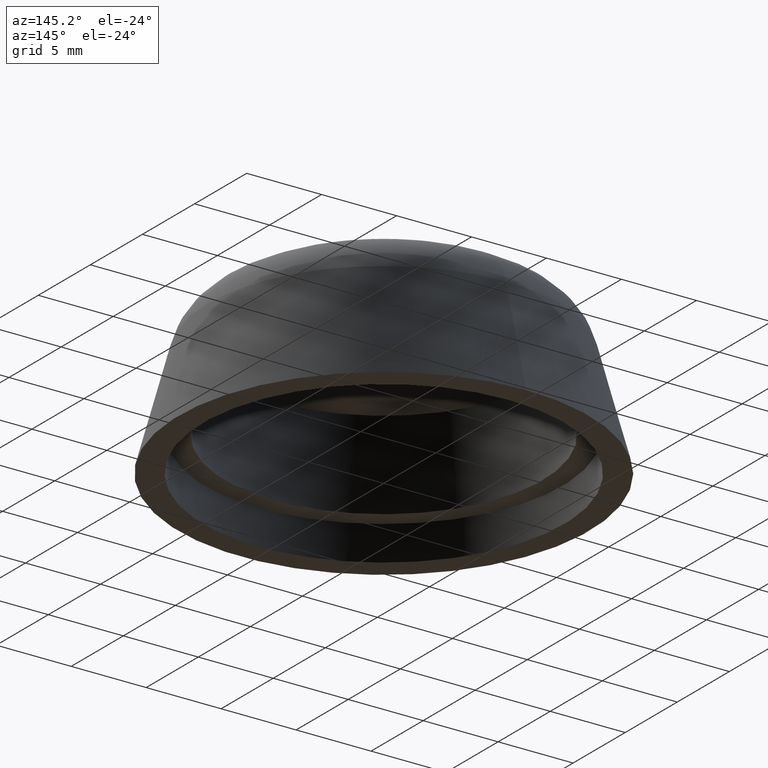
[diagram: clean part render]
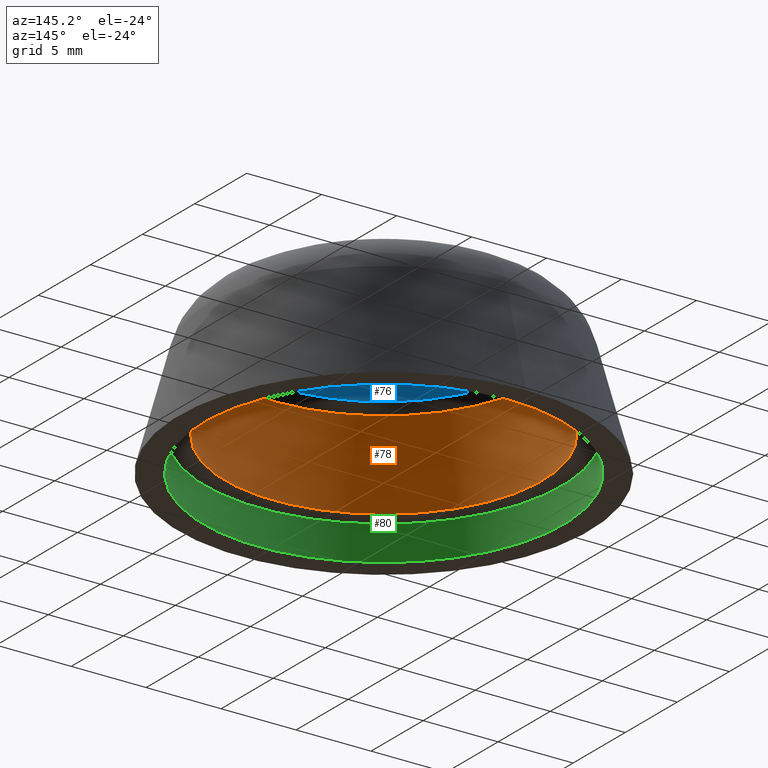
[diagram: same view with three faces highlighted in distinct colors, each labeled with its STEP entity id]
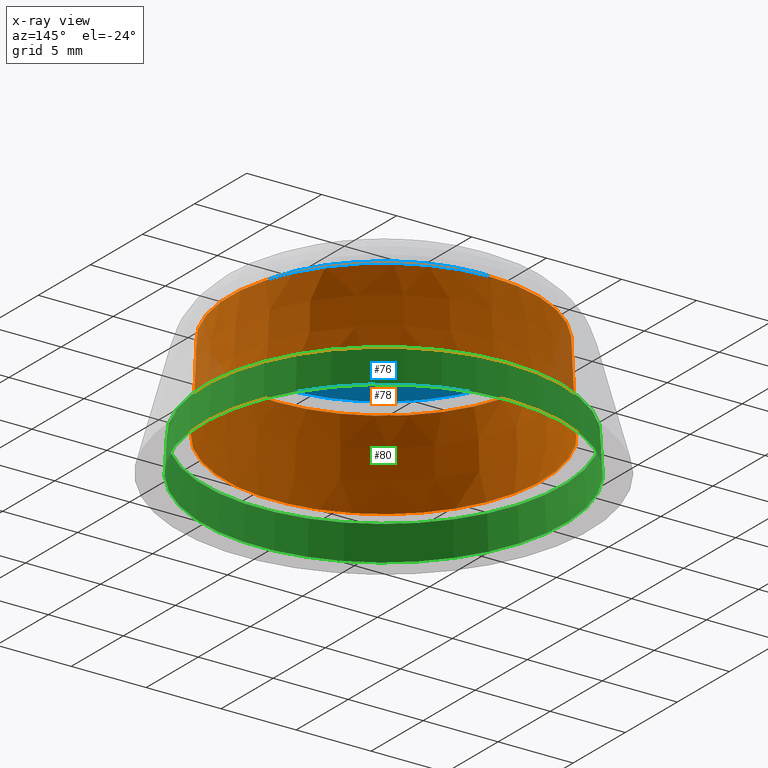
[diagram: x-ray of the same camera — body ghosted, the three highlighted faces saturated]
A machine part, auxiliary view with three faces highlighted in distinct colors.
The next image is the same camera in x-ray (body ghosted, the three faces saturated) — at least one of them is partly hidden behind the body in this view.
Their STEP definitions:

[orange] entity #78 — the highlighted conical surface has half-angle 3 deg.
#78 = ADVANCED_FACE( '', ( #93, #94 ), #95, .F. );
#93 = FACE_OUTER_BOUND( '', #153, .T. );
#94 = FACE_BOUND( '', #154, .T. );
#95 = CONICAL_SURFACE( '', #155, 10.2749613892478, 0.0523598775598312 );
#153 = EDGE_LOOP( '', ( #182 ) );
#154 = EDGE_LOOP( '', ( #183 ) );
#155 = AXIS2_PLACEMENT_3D( '', #184, #185, #186 );
#182 = ORIENTED_EDGE( '', *, *, #216, .T. );
#183 = ORIENTED_EDGE( '', *, *, #215, .F. );
#184 = CARTESIAN_POINT( '', ( 0.000000000000000, -2.91634908894220E-017, 8.02370831984672 ) );
#185 = DIRECTION( '', ( 0.000000000000000, -6.12303176911189E-017, -1.00000000000000 ) );
#186 = DIRECTION( '', ( 0.000000000000000, 1.00000000000000, -6.12303176911189E-017 ) );
#215 = EDGE_CURVE( '', #225, #225, #226, .T. );
#216 = EDGE_CURVE( '', #227, #227, #228, .T. );
#225 = VERTEX_POINT( '', #241 );
#226 = CIRCLE( '', #242, 10.2749613892478 );
#227 = VERTEX_POINT( '', #243 );
#228 = CIRCLE( '', #244, 10.5770245427262 );
#241 = CARTESIAN_POINT( '', ( 0.000000000000000, 10.2749613892478, 8.02370831984672 ) );
#242 = AXIS2_PLACEMENT_3D( '', #259, #260, #261 );
#243 = CARTESIAN_POINT( '', ( 0.000000000000000, 10.5770245427262, 2.26000000000001 ) );
#244 = AXIS2_PLACEMENT_3D( '', #262, #263, #264 );
#259 = CARTESIAN_POINT( '', ( 0.000000000000000, -2.91634908894220E-017, 8.02370831984672 ) );
#260 = DIRECTION( '', ( 0.000000000000000, -6.12303176911189E-017, -1.00000000000000 ) );
#261 = DIRECTION( '', ( 0.000000000000000, 1.00000000000000, -6.12303176911189E-017 ) );
#262 = CARTESIAN_POINT( '', ( 0.000000000000000, -3.82077182392581E-016, 2.26000000000001 ) );
#263 = DIRECTION( '', ( 0.000000000000000, -6.12303176911189E-017, -1.00000000000000 ) );
#264 = DIRECTION( '', ( 0.000000000000000, 1.00000000000000, -6.12303176911189E-017 ) );

[blue] entity #76 — the highlighted planar face has unit normal (0, -0, -1).
#76 = ADVANCED_FACE( '', ( #88 ), #89, .T. );
#88 = FACE_OUTER_BOUND( '', #148, .T. );
#89 = PLANE( '', #149 );
#148 = EDGE_LOOP( '', ( #173 ) );
#149 = AXIS2_PLACEMENT_3D( '', #174, #175, #176 );
#173 = ORIENTED_EDGE( '', *, *, #214, .T. );
#174 = CARTESIAN_POINT( '', ( 0.000000000000000, 1.54888970726467E-031, 8.50000000000000 ) );
#175 = DIRECTION( '', ( 0.000000000000000, -6.12303176911189E-017, -1.00000000000000 ) );
#176 = DIRECTION( '', ( 0.000000000000000, 1.00000000000000, -6.12303176911189E-017 ) );
#214 = EDGE_CURVE( '', #223, #223, #224, .T. );
#223 = VERTEX_POINT( '', #239 );
#224 = CIRCLE( '', #240, 9.44999999999999 );
#239 = CARTESIAN_POINT( '', ( 0.000000000000000, 9.44999999999999, 8.50000000000000 ) );
#240 = AXIS2_PLACEMENT_3D( '', #256, #257, #258 );
#256 = CARTESIAN_POINT( '', ( 0.000000000000000, -3.54294845530480E-032, 8.50000000000000 ) );
#257 = DIRECTION( '', ( 0.000000000000000, -6.12303176911189E-017, -1.00000000000000 ) );
#258 = DIRECTION( '', ( 0.000000000000000, 1.00000000000000, -6.12303176911189E-017 ) );

[green] entity #80 — the highlighted conical surface has half-angle 3 deg.
#80 = ADVANCED_FACE( '', ( #99, #100 ), #101, .F. );
#99 = FACE_OUTER_BOUND( '', #159, .T. );
#100 = FACE_BOUND( '', #160, .T. );
#101 = CONICAL_SURFACE( '', #161, 11.8970245427262, 0.0523598775598362 );
#159 = EDGE_LOOP( '', ( #192 ) );
#160 = EDGE_LOOP( '', ( #193 ) );
#161 = AXIS2_PLACEMENT_3D( '', #194, #195, #196 );
#192 = ORIENTED_EDGE( '', *, *, #218, .T. );
#193 = ORIENTED_EDGE( '', *, *, #217, .F. );
#194 = CARTESIAN_POINT( '', ( 0.000000000000000, -3.82077182392582E-016, 2.26000000000000 ) );
#195 = DIRECTION( '', ( 0.000000000000000, -6.12303176911189E-017, -1.00000000000000 ) );
#196 = DIRECTION( '', ( 0.000000000000000, 1.00000000000000, -6.12303176911189E-017 ) );
#217 = EDGE_CURVE( '', #229, #229, #230, .T. );
#218 = EDGE_CURVE( '', #231, #231, #232, .T. );
#229 = VERTEX_POINT( '', #245 );
#230 = CIRCLE( '', #246, 11.8970245427262 );
#231 = VERTEX_POINT( '', #247 );
#232 = CIRCLE( '', #248, 12.0154661239058 );
#245 = CARTESIAN_POINT( '', ( 0.000000000000000, 11.8970245427262, 2.26000000000000 ) );
#246 = AXIS2_PLACEMENT_3D( '', #265, #266, #267 );
#247 = CARTESIAN_POINT( '', ( 0.000000000000000, 12.0154661239058, -1.28787751398113E-014 ) );
#248 = AXIS2_PLACEMENT_3D( '', #268, #269, #270 );
#265 = CARTESIAN_POINT( '', ( 0.000000000000000, -3.82077182392582E-016, 2.26000000000000 ) );
#266 = DIRECTION( '', ( 0.000000000000000, -6.12303176911189E-017, -1.00000000000000 ) );
#267 = DIRECTION( '', ( 0.000000000000000, 1.00000000000000, -6.12303176911189E-017 ) );
#268 = CARTESIAN_POINT( '', ( 0.000000000000000, -5.20457700374511E-016, -1.21430643318377E-014 ) );
#269 = DIRECTION( '', ( 0.000000000000000, -6.12303176911189E-017, -1.00000000000000 ) );
#270 = DIRECTION( '', ( 0.000000000000000, 1.00000000000000, -6.12303176911189E-017 ) );